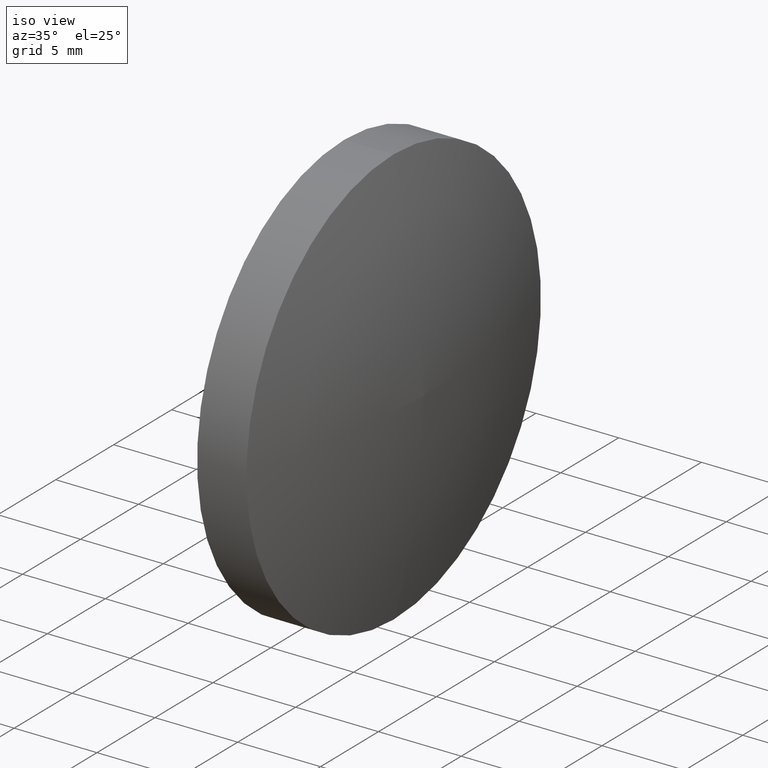
[diagram: clean part render]
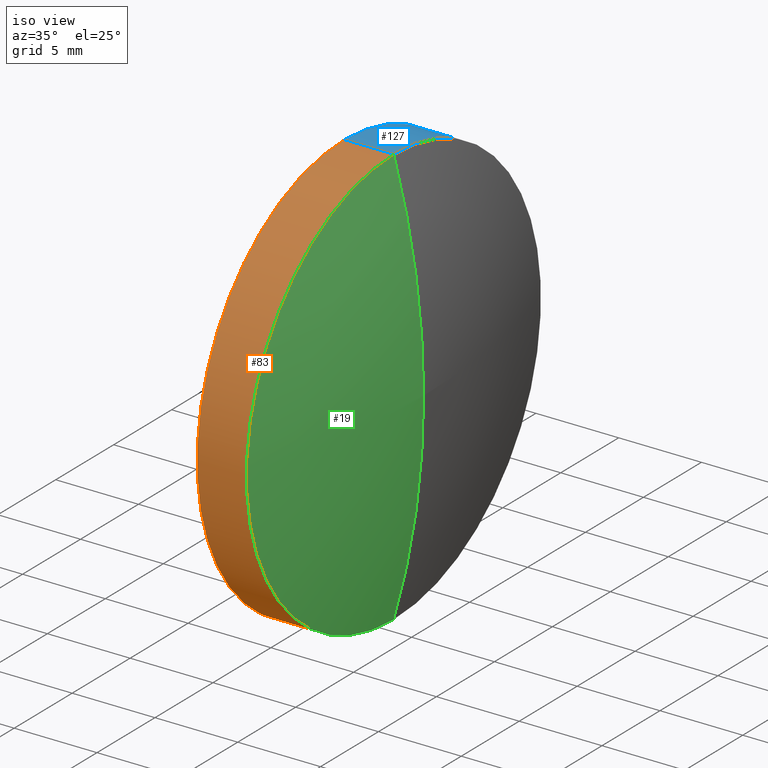
[diagram: same view with three faces highlighted in distinct colors, each labeled with its STEP entity id]
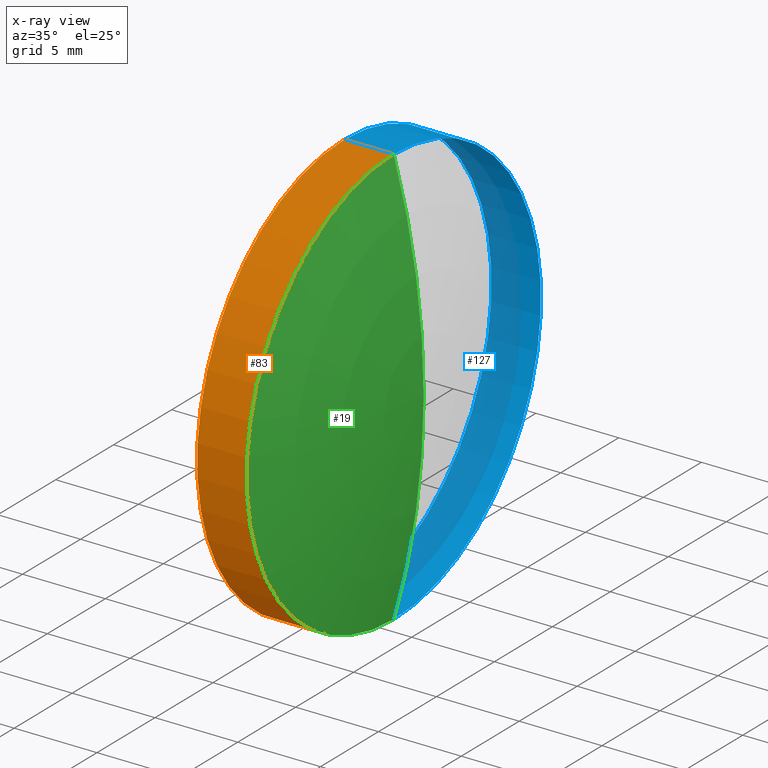
[diagram: x-ray of the same camera — body ghosted, the three highlighted faces saturated]
A machine part, iso view with three faces highlighted in distinct colors.
The next image is the same camera in x-ray (body ghosted, the three faces saturated) — at least one of them is partly hidden behind the body in this view.
Their STEP definitions:

[orange] entity #83 — the highlighted cylindrical surface (partial cylindrical patch) has radius 12.7 mm, axis along (-1, -0, -0).
#2 = ORIENTED_EDGE ( 'NONE', *, *, #132, .F. ) ;
#3 = LINE ( 'NONE', #5, #102 ) ;
#5 = CARTESIAN_POINT ( 'NONE',  ( 115.7736064308381300, 65.23355492641219700, -12.70000000000000300 ) ) ;
#7 = CARTESIAN_POINT ( 'NONE',  ( 118.7543184979534900, 65.23355492641219700, 12.69999999999998300 ) ) ;
#9 = CYLINDRICAL_SURFACE ( 'NONE', #79, 12.70000000000000300 ) ;
#15 = DIRECTION ( 'NONE',  ( 0.0000000000000000000, 0.0000000000000000000, 1.000000000000000000 ) ) ;
#16 = DIRECTION ( 'NONE',  ( -1.000000000000000000, -0.0000000000000000000, -0.0000000000000000000 ) ) ;
#17 = VERTEX_POINT ( 'NONE', #134 ) ;
#20 = ORIENTED_EDGE ( 'NONE', *, *, #142, .F. ) ;
#29 = CARTESIAN_POINT ( 'NONE',  ( 115.7736064308381300, 65.23355492641219700, 12.70000000000000300 ) ) ;
#32 = CARTESIAN_POINT ( 'NONE',  ( 115.7736064308381300, 65.23355492641219700, 0.0000000000000000000 ) ) ;
#42 = CARTESIAN_POINT ( 'NONE',  ( 115.7736064308381300, 65.23355492641219700, -12.70000000000000300 ) ) ;
#46 = DIRECTION ( 'NONE',  ( 0.0000000000000000000, 0.0000000000000000000, 1.000000000000000000 ) ) ;
#47 = EDGE_CURVE ( 'NONE', #85, #112, #64, .T. ) ;
#52 = VERTEX_POINT ( 'NONE', #42 ) ;
#64 = CIRCLE ( 'NONE', #140, 12.70000000000000300 ) ;
#72 = DIRECTION ( 'NONE',  ( -1.000000000000000000, -0.0000000000000000000, -0.0000000000000000000 ) ) ;
#74 = VECTOR ( 'NONE', #72, 1000.000000000000000 ) ;
#78 = CARTESIAN_POINT ( 'NONE',  ( 118.7543184979534900, 65.23355492641219700, 0.0000000000000000000 ) ) ;
#79 = AXIS2_PLACEMENT_3D ( 'NONE', #109, #96, #15 ) ;
#83 = ADVANCED_FACE ( 'NONE', ( #88 ), #9, .T. ) ;
#85 = VERTEX_POINT ( 'NONE', #121 ) ;
#88 = FACE_OUTER_BOUND ( 'NONE', #157, .T. ) ;
#91 = LINE ( 'NONE', #29, #74 ) ;
#93 = DIRECTION ( 'NONE',  ( -1.000000000000000000, -0.0000000000000000000, -0.0000000000000000000 ) ) ;
#96 = DIRECTION ( 'NONE',  ( -1.000000000000000000, -0.0000000000000000000, -0.0000000000000000000 ) ) ;
#100 = DIRECTION ( 'NONE',  ( -1.000000000000000000, -0.0000000000000000000, -0.0000000000000000000 ) ) ;
#101 = ORIENTED_EDGE ( 'NONE', *, *, #104, .T. ) ;
#102 = VECTOR ( 'NONE', #100, 1000.000000000000000 ) ;
#104 = EDGE_CURVE ( 'NONE', #112, #17, #91, .T. ) ;
#109 = CARTESIAN_POINT ( 'NONE',  ( 115.7736064308381300, 65.23355492641219700, 0.0000000000000000000 ) ) ;
#112 = VERTEX_POINT ( 'NONE', #7 ) ;
#121 = CARTESIAN_POINT ( 'NONE',  ( 118.7543184979534900, 65.23355492641219700, -12.69999999999998300 ) ) ;
#130 = CIRCLE ( 'NONE', #133, 12.70000000000000300 ) ;
#132 = EDGE_CURVE ( 'NONE', #52, #17, #130, .T. ) ;
#133 = AXIS2_PLACEMENT_3D ( 'NONE', #32, #16, #46 ) ;
#134 = CARTESIAN_POINT ( 'NONE',  ( 115.7736064308381300, 65.23355492641219700, 12.70000000000000300 ) ) ;
#140 = AXIS2_PLACEMENT_3D ( 'NONE', #78, #93, #146 ) ;
#142 = EDGE_CURVE ( 'NONE', #85, #52, #3, .T. ) ;
#146 = DIRECTION ( 'NONE',  ( 0.0000000000000000000, 0.0000000000000000000, 1.000000000000000000 ) ) ;
#151 = ORIENTED_EDGE ( 'NONE', *, *, #47, .T. ) ;
#157 = EDGE_LOOP ( 'NONE', ( #20, #151, #101, #2 ) ) ;

[blue] entity #127 — the highlighted cylindrical surface (partial cylindrical patch) has radius 12.7 mm, axis along (-1, -0, -0).
#3 = LINE ( 'NONE', #5, #102 ) ;
#4 = DIRECTION ( 'NONE',  ( 0.0000000000000000000, 0.0000000000000000000, 1.000000000000000000 ) ) ;
#5 = CARTESIAN_POINT ( 'NONE',  ( 115.7736064308381300, 65.23355492641219700, -12.70000000000000300 ) ) ;
#7 = CARTESIAN_POINT ( 'NONE',  ( 118.7543184979534900, 65.23355492641219700, 12.69999999999998300 ) ) ;
#17 = VERTEX_POINT ( 'NONE', #134 ) ;
#26 = ORIENTED_EDGE ( 'NONE', *, *, #142, .T. ) ;
#29 = CARTESIAN_POINT ( 'NONE',  ( 115.7736064308381300, 65.23355492641219700, 12.70000000000000300 ) ) ;
#34 = CIRCLE ( 'NONE', #116, 12.70000000000000300 ) ;
#37 = FACE_OUTER_BOUND ( 'NONE', #49, .T. ) ;
#42 = CARTESIAN_POINT ( 'NONE',  ( 115.7736064308381300, 65.23355492641219700, -12.70000000000000300 ) ) ;
#44 = DIRECTION ( 'NONE',  ( 0.0000000000000000000, 0.0000000000000000000, 1.000000000000000000 ) ) ;
#48 = ORIENTED_EDGE ( 'NONE', *, *, #114, .F. ) ;
#49 = EDGE_LOOP ( 'NONE', ( #115, #26, #48, #124 ) ) ;
#52 = VERTEX_POINT ( 'NONE', #42 ) ;
#69 = AXIS2_PLACEMENT_3D ( 'NONE', #138, #150, #4 ) ;
#72 = DIRECTION ( 'NONE',  ( -1.000000000000000000, -0.0000000000000000000, -0.0000000000000000000 ) ) ;
#74 = VECTOR ( 'NONE', #72, 1000.000000000000000 ) ;
#85 = VERTEX_POINT ( 'NONE', #121 ) ;
#91 = LINE ( 'NONE', #29, #74 ) ;
#98 = DIRECTION ( 'NONE',  ( -1.000000000000000000, -0.0000000000000000000, -0.0000000000000000000 ) ) ;
#100 = DIRECTION ( 'NONE',  ( -1.000000000000000000, -0.0000000000000000000, -0.0000000000000000000 ) ) ;
#102 = VECTOR ( 'NONE', #100, 1000.000000000000000 ) ;
#103 = CIRCLE ( 'NONE', #69, 12.70000000000000300 ) ;
#104 = EDGE_CURVE ( 'NONE', #112, #17, #91, .T. ) ;
#112 = VERTEX_POINT ( 'NONE', #7 ) ;
#113 = DIRECTION ( 'NONE',  ( 0.0000000000000000000, 0.0000000000000000000, 1.000000000000000000 ) ) ;
#114 = EDGE_CURVE ( 'NONE', #17, #52, #34, .T. ) ;
#115 = ORIENTED_EDGE ( 'NONE', *, *, #166, .T. ) ;
#116 = AXIS2_PLACEMENT_3D ( 'NONE', #152, #98, #44 ) ;
#121 = CARTESIAN_POINT ( 'NONE',  ( 118.7543184979534900, 65.23355492641219700, -12.69999999999998300 ) ) ;
#124 = ORIENTED_EDGE ( 'NONE', *, *, #104, .F. ) ;
#127 = ADVANCED_FACE ( 'NONE', ( #37 ), #135, .T. ) ;
#128 = AXIS2_PLACEMENT_3D ( 'NONE', #147, #162, #113 ) ;
#134 = CARTESIAN_POINT ( 'NONE',  ( 115.7736064308381300, 65.23355492641219700, 12.70000000000000300 ) ) ;
#135 = CYLINDRICAL_SURFACE ( 'NONE', #128, 12.70000000000000300 ) ;
#138 = CARTESIAN_POINT ( 'NONE',  ( 118.7543184979534900, 65.23355492641219700, 0.0000000000000000000 ) ) ;
#142 = EDGE_CURVE ( 'NONE', #85, #52, #3, .T. ) ;
#147 = CARTESIAN_POINT ( 'NONE',  ( 115.7736064308381300, 65.23355492641219700, 0.0000000000000000000 ) ) ;
#150 = DIRECTION ( 'NONE',  ( -1.000000000000000000, -0.0000000000000000000, -0.0000000000000000000 ) ) ;
#152 = CARTESIAN_POINT ( 'NONE',  ( 115.7736064308381300, 65.23355492641219700, 0.0000000000000000000 ) ) ;
#162 = DIRECTION ( 'NONE',  ( -1.000000000000000000, -0.0000000000000000000, -0.0000000000000000000 ) ) ;
#166 = EDGE_CURVE ( 'NONE', #112, #85, #103, .T. ) ;

[green] entity #19 — the highlighted toroidal blend (fillet) surface has major radius 0.067 mm and minor (blend) radius 45.9 mm.
#6 = EDGE_LOOP ( 'NONE', ( #107, #35, #129 ) ) ;
#7 = CARTESIAN_POINT ( 'NONE',  ( 118.7543184979534900, 65.23355492641219700, 12.69999999999998300 ) ) ;
#12 = CIRCLE ( 'NONE', #137, 45.89999999999998400 ) ;
#19 = ADVANCED_FACE ( 'NONE', ( #120 ), #76, .T. ) ;
#24 = AXIS2_PLACEMENT_3D ( 'NONE', #56, #77, #27 ) ;
#27 = DIRECTION ( 'NONE',  ( 0.0000000000000000000, 0.0000000000000000000, 1.000000000000000000 ) ) ;
#30 = EDGE_CURVE ( 'NONE', #165, #112, #66, .T. ) ;
#35 = ORIENTED_EDGE ( 'NONE', *, *, #30, .T. ) ;
#40 = DIRECTION ( 'NONE',  ( 0.0000000000000000000, 0.0000000000000000000, -1.000000000000000000 ) ) ;
#43 = DIRECTION ( 'NONE',  ( -0.0000000000000000000, 1.000000000000000000, 1.224646799147353200E-016 ) ) ;
#47 = EDGE_CURVE ( 'NONE', #85, #112, #64, .T. ) ;
#56 = CARTESIAN_POINT ( 'NONE',  ( 74.66560643083813900, 65.23355492641219700, 0.0000000000000000000 ) ) ;
#59 = CARTESIAN_POINT ( 'NONE',  ( 74.66560643083813900, 65.23355492641219700, -0.06696785705188890200 ) ) ;
#64 = CIRCLE ( 'NONE', #140, 12.70000000000000300 ) ;
#66 = CIRCLE ( 'NONE', #99, 45.89999999999998400 ) ;
#71 = DIRECTION ( 'NONE',  ( 0.0000000000000000000, 0.0000000000000000000, 1.000000000000000000 ) ) ;
#76 = TOROIDAL_SURFACE ( 'NONE', #24, -0.06696785705188890200, 45.89999999999998400 ) ;
#77 = DIRECTION ( 'NONE',  ( -1.000000000000000000, -0.0000000000000000000, -0.0000000000000000000 ) ) ;
#78 = CARTESIAN_POINT ( 'NONE',  ( 118.7543184979534900, 65.23355492641219700, 0.0000000000000000000 ) ) ;
#85 = VERTEX_POINT ( 'NONE', #121 ) ;
#93 = DIRECTION ( 'NONE',  ( -1.000000000000000000, -0.0000000000000000000, -0.0000000000000000000 ) ) ;
#95 = EDGE_CURVE ( 'NONE', #165, #85, #12, .T. ) ;
#99 = AXIS2_PLACEMENT_3D ( 'NONE', #59, #148, #40 ) ;
#107 = ORIENTED_EDGE ( 'NONE', *, *, #95, .F. ) ;
#112 = VERTEX_POINT ( 'NONE', #7 ) ;
#120 = FACE_OUTER_BOUND ( 'NONE', #6, .T. ) ;
#121 = CARTESIAN_POINT ( 'NONE',  ( 118.7543184979534900, 65.23355492641219700, -12.69999999999998300 ) ) ;
#125 = CARTESIAN_POINT ( 'NONE',  ( 120.5655575779376200, 65.23355492641219700, 0.0000000000000000000 ) ) ;
#126 = CARTESIAN_POINT ( 'NONE',  ( 74.66560643083813900, 65.23355492641219700, 0.06696785705188890200 ) ) ;
#129 = ORIENTED_EDGE ( 'NONE', *, *, #47, .F. ) ;
#137 = AXIS2_PLACEMENT_3D ( 'NONE', #126, #43, #71 ) ;
#140 = AXIS2_PLACEMENT_3D ( 'NONE', #78, #93, #146 ) ;
#146 = DIRECTION ( 'NONE',  ( 0.0000000000000000000, 0.0000000000000000000, 1.000000000000000000 ) ) ;
#148 = DIRECTION ( 'NONE',  ( 0.0000000000000000000, -1.000000000000000000, 0.0000000000000000000 ) ) ;
#165 = VERTEX_POINT ( 'NONE', #125 ) ;